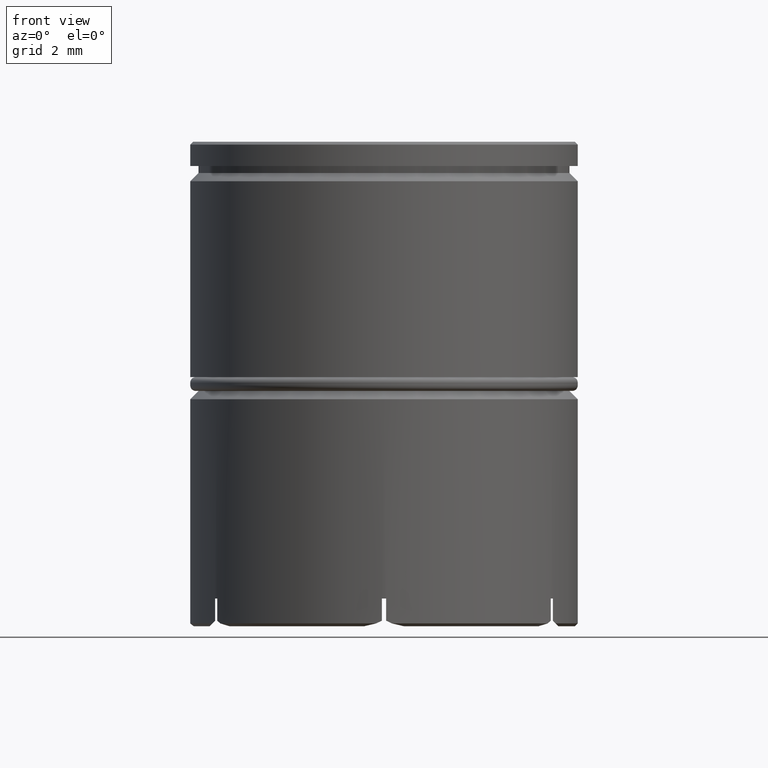
[diagram: clean part render]
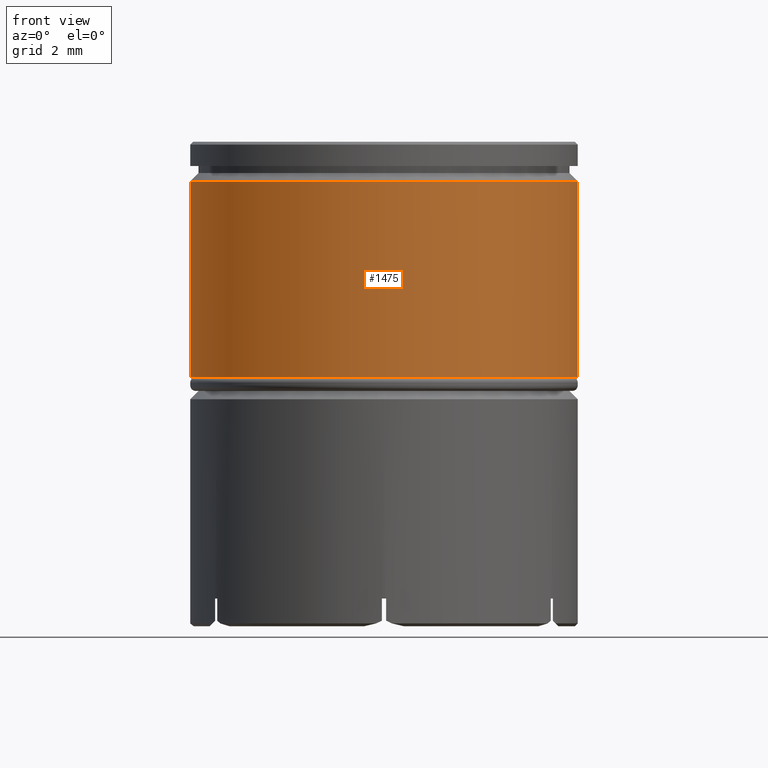
[diagram: same view with one face highlighted and labeled with its STEP entity id]
A machine part, front view. The second image highlights one B-rep face of the part: STEP entity #1475.
In plain terms, the highlighted cylindrical surface (partial cylindrical patch) has radius 7 mm, axis along (-0, -0, 1).
Its self-contained STEP definition (entity closure, byte-faithful):
#5 = DIRECTION ( 'NONE',  ( 0.000000000000000000, 0.000000000000000000, -1.000000000000000000 ) ) ;
#58 = VECTOR ( 'NONE', #345, 1000.000000000000000 ) ;
#138 = DIRECTION ( 'NONE',  ( 1.000000000000000000, 0.000000000000000000, 0.000000000000000000 ) ) ;
#154 = ORIENTED_EDGE ( 'NONE', *, *, #951, .F. ) ;
#166 = CIRCLE ( 'NONE', #848, 7.000000000000000888 ) ;
#236 = CARTESIAN_POINT ( 'NONE',  ( 0.000000000000000000, 0.000000000000000000, -1.425000000000005151 ) ) ;
#271 = DIRECTION ( 'NONE',  ( 1.000000000000000000, 0.000000000000000000, 0.000000000000000000 ) ) ;
#335 = CARTESIAN_POINT ( 'NONE',  ( 7.000000000000000888, 0.000000000000000000, 0.000000000000000000 ) ) ;
#345 = DIRECTION ( 'NONE',  ( -0.000000000000000000, -0.000000000000000000, 1.000000000000000000 ) ) ;
#363 = CARTESIAN_POINT ( 'NONE',  ( -7.000000000000000888, 8.572527594031474176E-16, -1.425000000000005151 ) ) ;
#391 = CARTESIAN_POINT ( 'NONE',  ( 7.000000000000000888, 0.000000000000000000, -8.500000000000000000 ) ) ;
#458 = CARTESIAN_POINT ( 'NONE',  ( -7.000000000000000888, 8.572527594031474176E-16, 0.000000000000000000 ) ) ;
#650 = CARTESIAN_POINT ( 'NONE',  ( 0.000000000000000000, 0.000000000000000000, 0.000000000000000000 ) ) ;
#653 = CARTESIAN_POINT ( 'NONE',  ( 7.000000000000000888, 0.000000000000000000, -1.425000000000005151 ) ) ;
#672 = CARTESIAN_POINT ( 'NONE',  ( -7.000000000000000888, 8.572527594031474176E-16, -8.500000000000000000 ) ) ;
#701 = VERTEX_POINT ( 'NONE', #363 ) ;
#751 = ORIENTED_EDGE ( 'NONE', *, *, #1396, .T. ) ;
#763 = DIRECTION ( 'NONE',  ( -0.000000000000000000, -0.000000000000000000, 1.000000000000000000 ) ) ;
#780 = VERTEX_POINT ( 'NONE', #653 ) ;
#837 = DIRECTION ( 'NONE',  ( -0.000000000000000000, -0.000000000000000000, 1.000000000000000000 ) ) ;
#848 = AXIS2_PLACEMENT_3D ( 'NONE', #236, #5, #138 ) ;
#876 = VECTOR ( 'NONE', #837, 1000.000000000000000 ) ;
#882 = CARTESIAN_POINT ( 'NONE',  ( 0.000000000000000000, 0.000000000000000000, -8.500000000000000000 ) ) ;
#931 = EDGE_LOOP ( 'NONE', ( #154, #1139, #751, #980 ) ) ;
#951 = EDGE_CURVE ( 'NONE', #1147, #701, #1459, .T. ) ;
#974 = CIRCLE ( 'NONE', #1587, 7.000000000000000888 ) ;
#980 = ORIENTED_EDGE ( 'NONE', *, *, #1092, .T. ) ;
#982 = DIRECTION ( 'NONE',  ( 1.000000000000000000, 0.000000000000000000, 0.000000000000000000 ) ) ;
#991 = VERTEX_POINT ( 'NONE', #391 ) ;
#995 = EDGE_CURVE ( 'NONE', #1147, #991, #974, .T. ) ;
#1002 = AXIS2_PLACEMENT_3D ( 'NONE', #650, #763, #982 ) ;
#1014 = FACE_OUTER_BOUND ( 'NONE', #931, .T. ) ;
#1092 = EDGE_CURVE ( 'NONE', #780, #701, #166, .T. ) ;
#1139 = ORIENTED_EDGE ( 'NONE', *, *, #995, .T. ) ;
#1147 = VERTEX_POINT ( 'NONE', #672 ) ;
#1329 = LINE ( 'NONE', #335, #876 ) ;
#1389 = CYLINDRICAL_SURFACE ( 'NONE', #1002, 7.000000000000000888 ) ;
#1396 = EDGE_CURVE ( 'NONE', #991, #780, #1329, .T. ) ;
#1459 = LINE ( 'NONE', #458, #58 ) ;
#1475 = ADVANCED_FACE ( 'NONE', ( #1014 ), #1389, .T. ) ;
#1502 = DIRECTION ( 'NONE',  ( -0.000000000000000000, -0.000000000000000000, 1.000000000000000000 ) ) ;
#1587 = AXIS2_PLACEMENT_3D ( 'NONE', #882, #1502, #271 ) ;